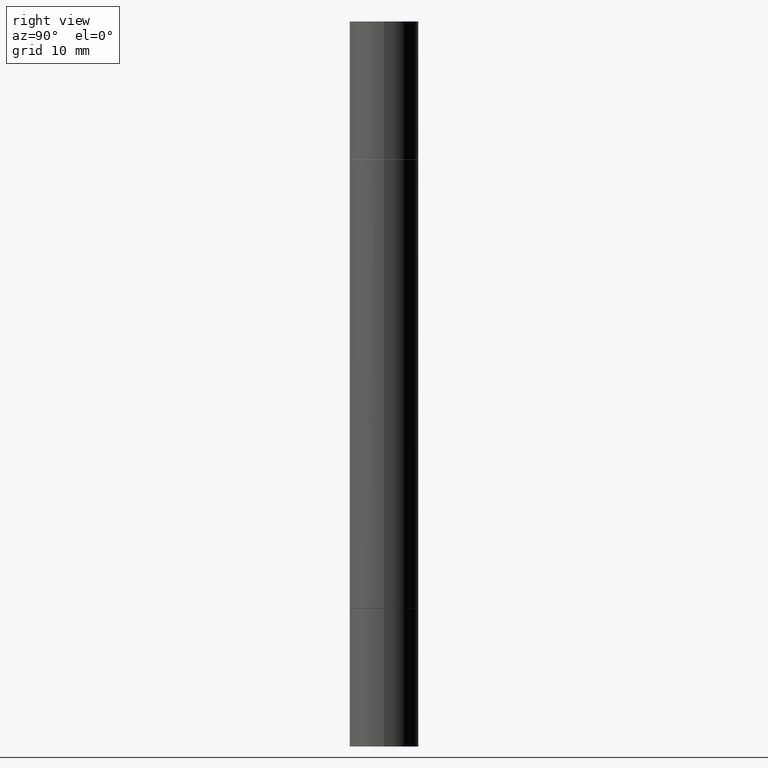
[diagram: clean part render]
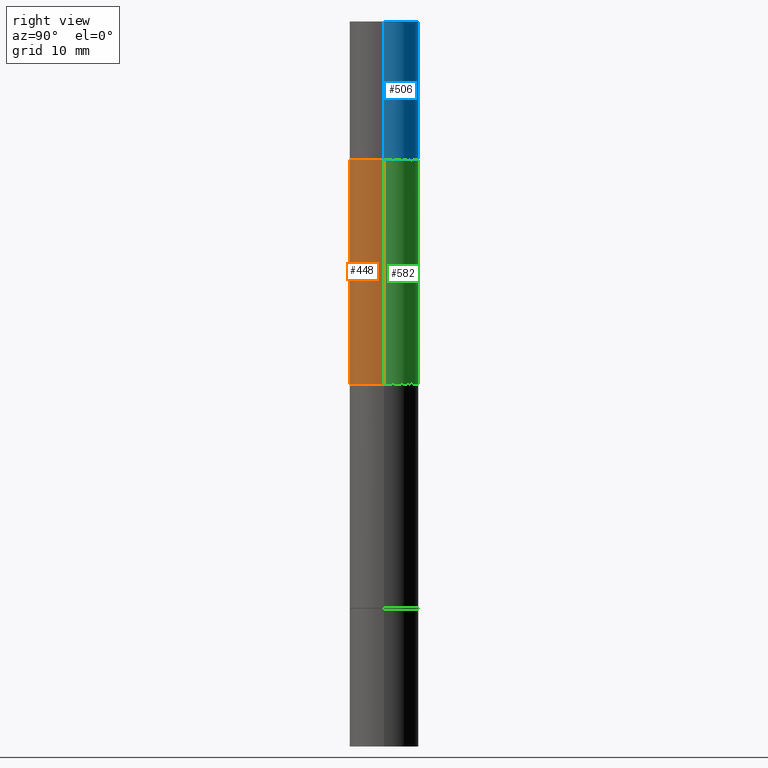
[diagram: same view with three faces highlighted in distinct colors, each labeled with its STEP entity id]
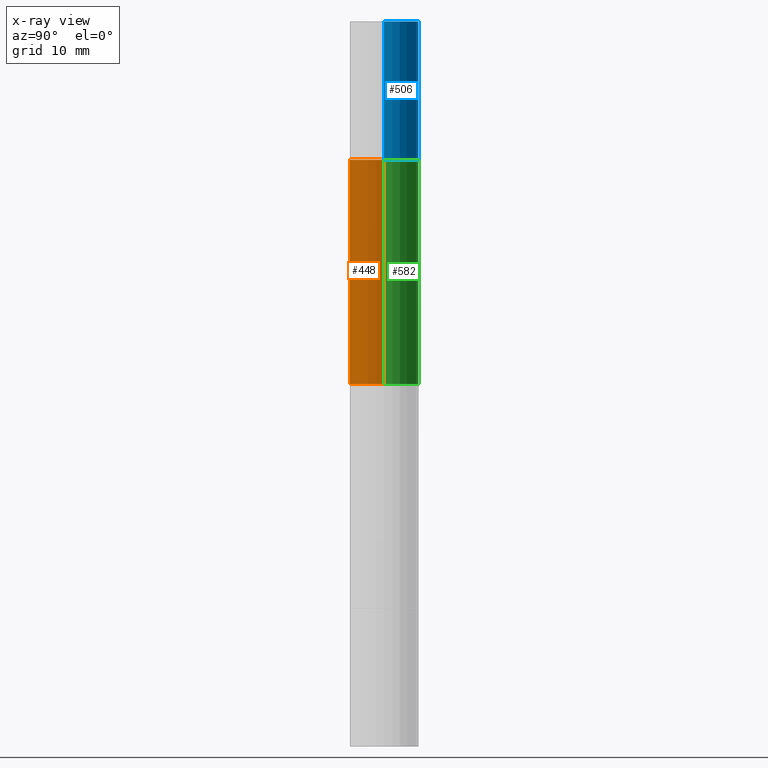
[diagram: x-ray of the same camera — body ghosted, the three highlighted faces saturated]
A machine part, right view with three faces highlighted in distinct colors.
The next image is the same camera in x-ray (body ghosted, the three faces saturated) — at least one of them is partly hidden behind the body in this view.
Their STEP definitions:

[orange] entity #448 — the highlighted cylindrical surface (edge-blend (fillet) strip) has radius 2.9997 mm, axis along (-0, -0, -1).
#18 = CARTESIAN_POINT ( 'NONE',  ( 0.1180999999999998856, -3.815561613072418896E-15, -1.240149999999999864 ) ) ;
#36 = DIRECTION ( 'NONE',  ( 1.000000000000000000, -6.982962677686265133E-15, 0.000000000000000000 ) ) ;
#47 = VERTEX_POINT ( 'NONE', #293 ) ;
#53 = CARTESIAN_POINT ( 'NONE',  ( 0.1180999999999999966, -2.476474751543767778E-15, -0.4733999999999996544 ) ) ;
#112 = ORIENTED_EDGE ( 'NONE', *, *, #395, .F. ) ;
#124 = EDGE_CURVE ( 'NONE', #473, #460, #202, .T. ) ;
#125 = CARTESIAN_POINT ( 'NONE',  ( 0.000000000000000000, -8.661668626252231138E-15, -2.480299999999999727 ) ) ;
#145 = CARTESIAN_POINT ( 'NONE',  ( -0.1180999999999998856, -7.851443812715415176E-15, -2.480299999999999727 ) ) ;
#151 = LINE ( 'NONE', #145, #570 ) ;
#165 = VECTOR ( 'NONE', #657, 39.37007874015748143 ) ;
#169 = ORIENTED_EDGE ( 'NONE', *, *, #366, .F. ) ;
#175 = CYLINDRICAL_SURFACE ( 'NONE', #272, 0.1180999999999998856 ) ;
#202 = LINE ( 'NONE', #442, #165 ) ;
#204 = AXIS2_PLACEMENT_3D ( 'NONE', #579, #300, #519 ) ;
#268 = CIRCLE ( 'NONE', #572, 0.1180999999999999966 ) ;
#272 = AXIS2_PLACEMENT_3D ( 'NONE', #125, #330, #547 ) ;
#292 = CIRCLE ( 'NONE', #204, 0.1180999999999998856 ) ;
#293 = CARTESIAN_POINT ( 'NONE',  ( -0.1180999999999999966, -8.415620457722018772E-16, -0.4733999999999996544 ) ) ;
#295 = VERTEX_POINT ( 'NONE', #479 ) ;
#300 = DIRECTION ( 'NONE',  ( -0.000000000000000000, -3.492185875197449130E-15, -1.000000000000000000 ) ) ;
#308 = CARTESIAN_POINT ( 'NONE',  ( 4.907811347132950827E-29, -1.651786859309018332E-15, -0.4733999999999996544 ) ) ;
#330 = DIRECTION ( 'NONE',  ( -2.445468806185136597E-29, -3.492890411551752677E-15, -1.000000000000000000 ) ) ;
#366 = EDGE_CURVE ( 'NONE', #47, #473, #268, .T. ) ;
#373 = EDGE_CURVE ( 'NONE', #47, #295, #151, .T. ) ;
#395 = EDGE_CURVE ( 'NONE', #460, #295, #292, .T. ) ;
#442 = CARTESIAN_POINT ( 'NONE',  ( 0.1180999999999998856, -9.486356518486979401E-15, -2.480299999999999727 ) ) ;
#448 = ADVANCED_FACE ( 'NONE', ( #490 ), #175, .T. ) ;
#460 = VERTEX_POINT ( 'NONE', #18 ) ;
#473 = VERTEX_POINT ( 'NONE', #53 ) ;
#476 = ORIENTED_EDGE ( 'NONE', *, *, #373, .T. ) ;
#479 = CARTESIAN_POINT ( 'NONE',  ( -0.1180999999999998856, -2.180648907300854672E-15, -1.240149999999999864 ) ) ;
#490 = FACE_OUTER_BOUND ( 'NONE', #627, .T. ) ;
#519 = DIRECTION ( 'NONE',  ( 0.000000000000000000, 1.000000000000000000, -4.626330217890374069E-15 ) ) ;
#525 = DIRECTION ( 'NONE',  ( 2.445468806185136597E-29, 3.492890411551752677E-15, 1.000000000000000000 ) ) ;
#547 = DIRECTION ( 'NONE',  ( 1.000000000000000000, -6.982962677686271444E-15, 0.000000000000000000 ) ) ;
#570 = VECTOR ( 'NONE', #632, 39.37007874015748143 ) ;
#572 = AXIS2_PLACEMENT_3D ( 'NONE', #308, #525, #36 ) ;
#579 = CARTESIAN_POINT ( 'NONE',  ( 3.032748139990496817E-29, -4.329960582366326879E-15, -1.240149999999999864 ) ) ;
#606 = ORIENTED_EDGE ( 'NONE', *, *, #124, .F. ) ;
#627 = EDGE_LOOP ( 'NONE', ( #169, #476, #112, #606 ) ) ;
#632 = DIRECTION ( 'NONE',  ( -2.445468806185136877E-29, -3.492890411551753071E-15, -1.000000000000000000 ) ) ;
#657 = DIRECTION ( 'NONE',  ( -2.445468806185136877E-29, -3.492890411551753071E-15, -1.000000000000000000 ) ) ;

[blue] entity #506 — the highlighted cylindrical surface (edge-blend (fillet) strip) has radius 2.9997 mm, axis along (-0, -0, -1).
#3 = EDGE_CURVE ( 'NONE', #177, #436, #296, .T. ) ;
#30 = CARTESIAN_POINT ( 'NONE',  ( 0.1180999999999999966, -9.486356518486979401E-15, -2.480299999999999727 ) ) ;
#51 = CIRCLE ( 'NONE', #566, 0.1180999999999999966 ) ;
#74 = DIRECTION ( 'NONE',  ( 1.000000000000000000, -6.982962677686265133E-15, 0.000000000000000000 ) ) ;
#76 = ORIENTED_EDGE ( 'NONE', *, *, #110, .T. ) ;
#89 = DIRECTION ( 'NONE',  ( 1.000000000000000000, -6.982962677686265133E-15, 0.000000000000000000 ) ) ;
#96 = LINE ( 'NONE', #254, #209 ) ;
#110 = EDGE_CURVE ( 'NONE', #436, #596, #51, .T. ) ;
#114 = CARTESIAN_POINT ( 'NONE',  ( 0.1180999999999999966, -2.472981861132215636E-15, -0.4723999999999995980 ) ) ;
#128 = CARTESIAN_POINT ( 'NONE',  ( 0.000000000000000000, -8.661668626252231138E-15, -2.480299999999999727 ) ) ;
#147 = DIRECTION ( 'NONE',  ( -2.445468806185136877E-29, -3.492890411551753071E-15, -1.000000000000000000 ) ) ;
#177 = VERTEX_POINT ( 'NONE', #652 ) ;
#209 = VECTOR ( 'NONE', #237, 39.37007874015748143 ) ;
#221 = EDGE_CURVE ( 'NONE', #259, #596, #96, .T. ) ;
#237 = DIRECTION ( 'NONE',  ( -2.445468806185136877E-29, -3.492890411551753071E-15, -1.000000000000000000 ) ) ;
#241 = DIRECTION ( 'NONE',  ( 2.445468806185136597E-29, 3.492890411551752677E-15, 1.000000000000000000 ) ) ;
#254 = CARTESIAN_POINT ( 'NONE',  ( -0.1180999999999999966, -7.851443812715413599E-15, -2.480299999999999727 ) ) ;
#259 = VERTEX_POINT ( 'NONE', #512 ) ;
#262 = CIRCLE ( 'NONE', #343, 0.1180999999999999966 ) ;
#296 = LINE ( 'NONE', #30, #297 ) ;
#297 = VECTOR ( 'NONE', #147, 39.37007874015748143 ) ;
#316 = CARTESIAN_POINT ( 'NONE',  ( -0.1180999999999999966, -1.304844015212474234E-17, -0.4723999999999995980 ) ) ;
#343 = AXIS2_PLACEMENT_3D ( 'NONE', #585, #595, #475 ) ;
#346 = ORIENTED_EDGE ( 'NONE', *, *, #3, .T. ) ;
#350 = ORIENTED_EDGE ( 'NONE', *, *, #620, .F. ) ;
#434 = EDGE_LOOP ( 'NONE', ( #660, #350, #346, #76 ) ) ;
#436 = VERTEX_POINT ( 'NONE', #114 ) ;
#440 = AXIS2_PLACEMENT_3D ( 'NONE', #128, #613, #74 ) ;
#459 = CARTESIAN_POINT ( 'NONE',  ( 4.910256815939136430E-29, -1.648293968897467768E-15, -0.4723999999999995980 ) ) ;
#475 = DIRECTION ( 'NONE',  ( 1.000000000000000000, -6.982962677686266711E-15, 0.000000000000000000 ) ) ;
#506 = ADVANCED_FACE ( 'NONE', ( #658 ), #661, .T. ) ;
#512 = CARTESIAN_POINT ( 'NONE',  ( -0.1180999999999999966, -1.304844015212474234E-17, 5.463695987328556019E-16 ) ) ;
#566 = AXIS2_PLACEMENT_3D ( 'NONE', #459, #241, #89 ) ;
#585 = CARTESIAN_POINT ( 'NONE',  ( 6.065496279980994755E-29, 1.747461519580534218E-18, 5.463695987328526437E-16 ) ) ;
#595 = DIRECTION ( 'NONE',  ( 2.445468806185136597E-29, 3.492890411551752677E-15, 1.000000000000000000 ) ) ;
#596 = VERTEX_POINT ( 'NONE', #316 ) ;
#613 = DIRECTION ( 'NONE',  ( -2.445468806185136597E-29, -3.492890411551752677E-15, -1.000000000000000000 ) ) ;
#620 = EDGE_CURVE ( 'NONE', #177, #259, #262, .T. ) ;
#652 = CARTESIAN_POINT ( 'NONE',  ( 0.1180999999999999966, -8.229404307151675296E-16, 5.463695987328526437E-16 ) ) ;
#658 = FACE_OUTER_BOUND ( 'NONE', #434, .T. ) ;
#660 = ORIENTED_EDGE ( 'NONE', *, *, #221, .F. ) ;
#661 = CYLINDRICAL_SURFACE ( 'NONE', #440, 0.1180999999999999966 ) ;

[green] entity #582 — the highlighted cylindrical surface (edge-blend (fillet) strip) has radius 2.9997 mm, axis along (-0, -0, -1).
#18 = CARTESIAN_POINT ( 'NONE',  ( 0.1180999999999998856, -3.815561613072418896E-15, -1.240149999999999864 ) ) ;
#43 = DIRECTION ( 'NONE',  ( 1.000000000000000000, -6.982962677686271444E-15, 0.000000000000000000 ) ) ;
#47 = VERTEX_POINT ( 'NONE', #293 ) ;
#53 = CARTESIAN_POINT ( 'NONE',  ( 0.1180999999999999966, -2.476474751543767778E-15, -0.4733999999999996544 ) ) ;
#72 = ORIENTED_EDGE ( 'NONE', *, *, #646, .F. ) ;
#78 = ORIENTED_EDGE ( 'NONE', *, *, #373, .F. ) ;
#98 = CARTESIAN_POINT ( 'NONE',  ( 0.000000000000000000, -8.661668626252231138E-15, -2.480299999999999727 ) ) ;
#119 = DIRECTION ( 'NONE',  ( 1.000000000000000000, -6.982962677686265133E-15, 0.000000000000000000 ) ) ;
#124 = EDGE_CURVE ( 'NONE', #473, #460, #202, .T. ) ;
#145 = CARTESIAN_POINT ( 'NONE',  ( -0.1180999999999998856, -7.851443812715415176E-15, -2.480299999999999727 ) ) ;
#151 = LINE ( 'NONE', #145, #570 ) ;
#163 = CARTESIAN_POINT ( 'NONE',  ( 4.907811347132950827E-29, -1.651786859309018332E-15, -0.4733999999999996544 ) ) ;
#165 = VECTOR ( 'NONE', #657, 39.37007874015748143 ) ;
#172 = AXIS2_PLACEMENT_3D ( 'NONE', #98, #307, #43 ) ;
#202 = LINE ( 'NONE', #442, #165 ) ;
#225 = AXIS2_PLACEMENT_3D ( 'NONE', #163, #419, #119 ) ;
#249 = CIRCLE ( 'NONE', #225, 0.1180999999999999966 ) ;
#263 = CYLINDRICAL_SURFACE ( 'NONE', #172, 0.1180999999999998856 ) ;
#282 = DIRECTION ( 'NONE',  ( -0.000000000000000000, -3.492185875197449130E-15, -1.000000000000000000 ) ) ;
#293 = CARTESIAN_POINT ( 'NONE',  ( -0.1180999999999999966, -8.415620457722018772E-16, -0.4733999999999996544 ) ) ;
#295 = VERTEX_POINT ( 'NONE', #479 ) ;
#307 = DIRECTION ( 'NONE',  ( -2.445468806185136597E-29, -3.492890411551752677E-15, -1.000000000000000000 ) ) ;
#373 = EDGE_CURVE ( 'NONE', #47, #295, #151, .T. ) ;
#390 = ORIENTED_EDGE ( 'NONE', *, *, #439, .F. ) ;
#396 = AXIS2_PLACEMENT_3D ( 'NONE', #599, #282, #430 ) ;
#419 = DIRECTION ( 'NONE',  ( 2.445468806185136597E-29, 3.492890411551752677E-15, 1.000000000000000000 ) ) ;
#426 = CIRCLE ( 'NONE', #396, 0.1180999999999998856 ) ;
#430 = DIRECTION ( 'NONE',  ( 0.000000000000000000, 1.000000000000000000, -4.626330217890374069E-15 ) ) ;
#439 = EDGE_CURVE ( 'NONE', #473, #47, #249, .T. ) ;
#442 = CARTESIAN_POINT ( 'NONE',  ( 0.1180999999999998856, -9.486356518486979401E-15, -2.480299999999999727 ) ) ;
#460 = VERTEX_POINT ( 'NONE', #18 ) ;
#473 = VERTEX_POINT ( 'NONE', #53 ) ;
#479 = CARTESIAN_POINT ( 'NONE',  ( -0.1180999999999998856, -2.180648907300854672E-15, -1.240149999999999864 ) ) ;
#532 = ORIENTED_EDGE ( 'NONE', *, *, #124, .T. ) ;
#570 = VECTOR ( 'NONE', #632, 39.37007874015748143 ) ;
#573 = FACE_OUTER_BOUND ( 'NONE', #650, .T. ) ;
#582 = ADVANCED_FACE ( 'NONE', ( #573 ), #263, .T. ) ;
#599 = CARTESIAN_POINT ( 'NONE',  ( 3.032748139990496817E-29, -4.329960582366326879E-15, -1.240149999999999864 ) ) ;
#632 = DIRECTION ( 'NONE',  ( -2.445468806185136877E-29, -3.492890411551753071E-15, -1.000000000000000000 ) ) ;
#646 = EDGE_CURVE ( 'NONE', #295, #460, #426, .T. ) ;
#650 = EDGE_LOOP ( 'NONE', ( #78, #390, #532, #72 ) ) ;
#657 = DIRECTION ( 'NONE',  ( -2.445468806185136877E-29, -3.492890411551753071E-15, -1.000000000000000000 ) ) ;